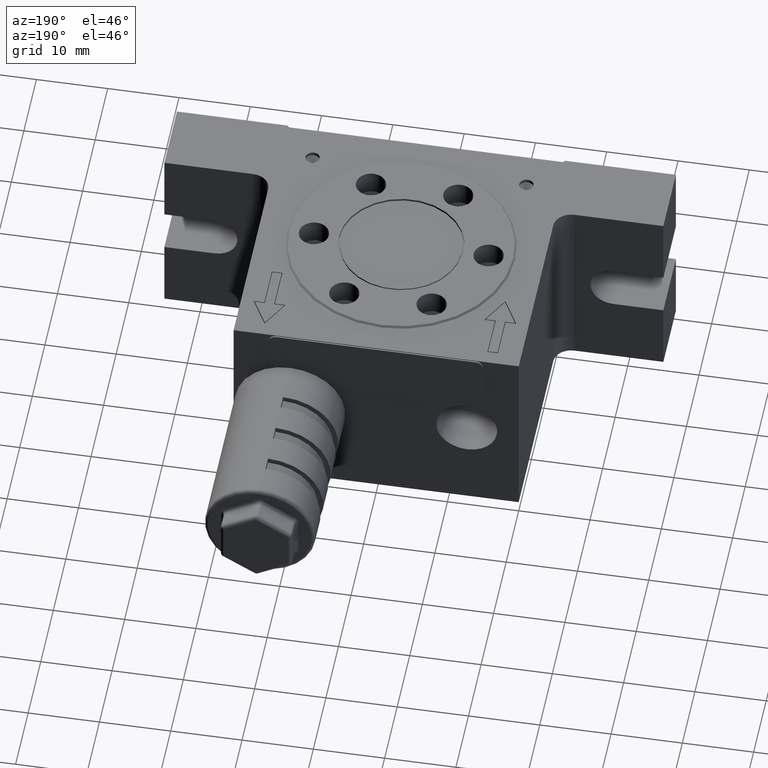
[diagram: clean part render]
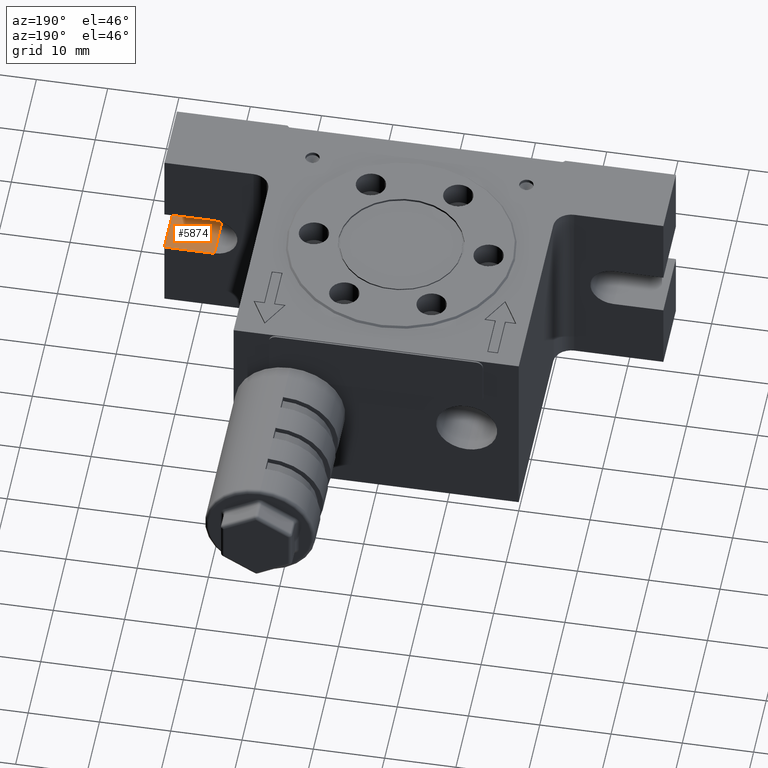
[diagram: same view with one face highlighted and labeled with its STEP entity id]
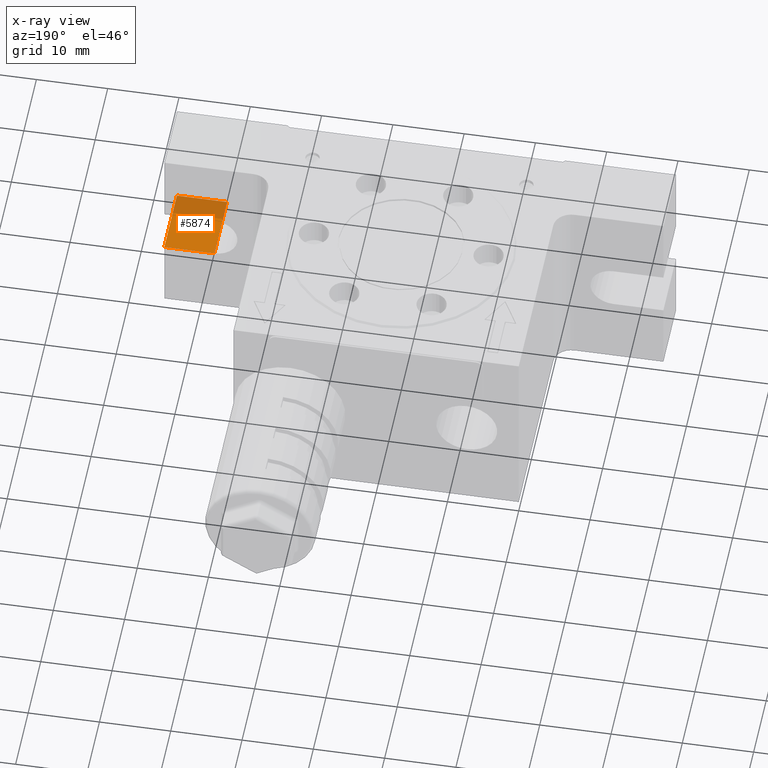
[diagram: x-ray of the same camera — body ghosted, the highlighted face saturated]
A machine part, auxiliary view. The second image highlights one B-rep face of the part: STEP entity #5874.
The next image is the same camera in x-ray: the body ghosted, the highlighted face saturated — about 33% of this face is hidden behind the body in this view.
In plain terms, the highlighted planar face has unit normal (-0, 0, -1).
Its self-contained STEP definition (entity closure, byte-faithful):
#214 = LINE ( 'NONE', #7725, #12337 ) ;
#937 = CARTESIAN_POINT ( 'NONE',  ( 35.00000000000000000, -20.00000000000000000, -3.250000000000000000 ) ) ;
#2113 = DIRECTION ( 'NONE',  ( -1.000000000000000000, 0.0000000000000000000, 5.575896887068309800E-016 ) ) ;
#2254 = VERTEX_POINT ( 'NONE', #3491 ) ;
#2865 = DIRECTION ( 'NONE',  ( 0.0000000000000000000, 1.000000000000000000, 0.0000000000000000000 ) ) ;
#2902 = EDGE_CURVE ( 'NONE', #7603, #6926, #5228, .T. ) ;
#3475 = VERTEX_POINT ( 'NONE', #17884 ) ;
#3491 = CARTESIAN_POINT ( 'NONE',  ( 28.00000000000000000, -10.00000000000000000, -3.250000000000000000 ) ) ;
#5228 = LINE ( 'NONE', #937, #22155 ) ;
#5874 = ADVANCED_FACE ( 'NONE', ( #10829 ), #20546, .F. ) ;
#6926 = VERTEX_POINT ( 'NONE', #14142 ) ;
#7603 = VERTEX_POINT ( 'NONE', #18931 ) ;
#7725 = CARTESIAN_POINT ( 'NONE',  ( 35.00000000000000000, -10.00000000000000000, -3.250000000000000000 ) ) ;
#7799 = CARTESIAN_POINT ( 'NONE',  ( 35.00000000000000000, -20.00000000000000000, -3.250000000000000000 ) ) ;
#8987 = ORIENTED_EDGE ( 'NONE', *, *, #2902, .F. ) ;
#9994 = EDGE_LOOP ( 'NONE', ( #15021, #14924, #8987, #15102 ) ) ;
#10143 = VECTOR ( 'NONE', #22647, 1000.000000000000000 ) ;
#10829 = FACE_OUTER_BOUND ( 'NONE', #9994, .T. ) ;
#11744 = DIRECTION ( 'NONE',  ( -1.000000000000000000, 0.0000000000000000000, 5.575896887068309800E-016 ) ) ;
#11879 = LINE ( 'NONE', #17448, #10143 ) ;
#11961 = DIRECTION ( 'NONE',  ( -1.000000000000000000, 0.0000000000000000000, 5.575896887068309800E-016 ) ) ;
#12184 = CARTESIAN_POINT ( 'NONE',  ( 28.00000000000000000, -20.00000000000000000, -3.250000000000000000 ) ) ;
#12337 = VECTOR ( 'NONE', #2113, 1000.000000000000000 ) ;
#12605 = EDGE_CURVE ( 'NONE', #7603, #3475, #11879, .T. ) ;
#13778 = EDGE_CURVE ( 'NONE', #6926, #2254, #14970, .T. ) ;
#13829 = VECTOR ( 'NONE', #2865, 1000.000000000000000 ) ;
#14142 = CARTESIAN_POINT ( 'NONE',  ( 28.00000000000000000, -20.00000000000000000, -3.250000000000000000 ) ) ;
#14924 = ORIENTED_EDGE ( 'NONE', *, *, #13778, .F. ) ;
#14970 = LINE ( 'NONE', #12184, #13829 ) ;
#15021 = ORIENTED_EDGE ( 'NONE', *, *, #15859, .T. ) ;
#15102 = ORIENTED_EDGE ( 'NONE', *, *, #12605, .T. ) ;
#15859 = EDGE_CURVE ( 'NONE', #3475, #2254, #214, .T. ) ;
#17165 = AXIS2_PLACEMENT_3D ( 'NONE', #7799, #20789, #11744 ) ;
#17448 = CARTESIAN_POINT ( 'NONE',  ( 35.00000000000000000, -20.00000000000000000, -3.250000000000000000 ) ) ;
#17884 = CARTESIAN_POINT ( 'NONE',  ( 35.00000000000000000, -10.00000000000000000, -3.250000000000000000 ) ) ;
#18931 = CARTESIAN_POINT ( 'NONE',  ( 35.00000000000000000, -20.00000000000000000, -3.250000000000000000 ) ) ;
#20546 = PLANE ( 'NONE',  #17165 ) ;
#20789 = DIRECTION ( 'NONE',  ( -5.575896887068309800E-016, 0.0000000000000000000, -1.000000000000000000 ) ) ;
#22155 = VECTOR ( 'NONE', #11961, 1000.000000000000000 ) ;
#22647 = DIRECTION ( 'NONE',  ( 0.0000000000000000000, 1.000000000000000000, 0.0000000000000000000 ) ) ;